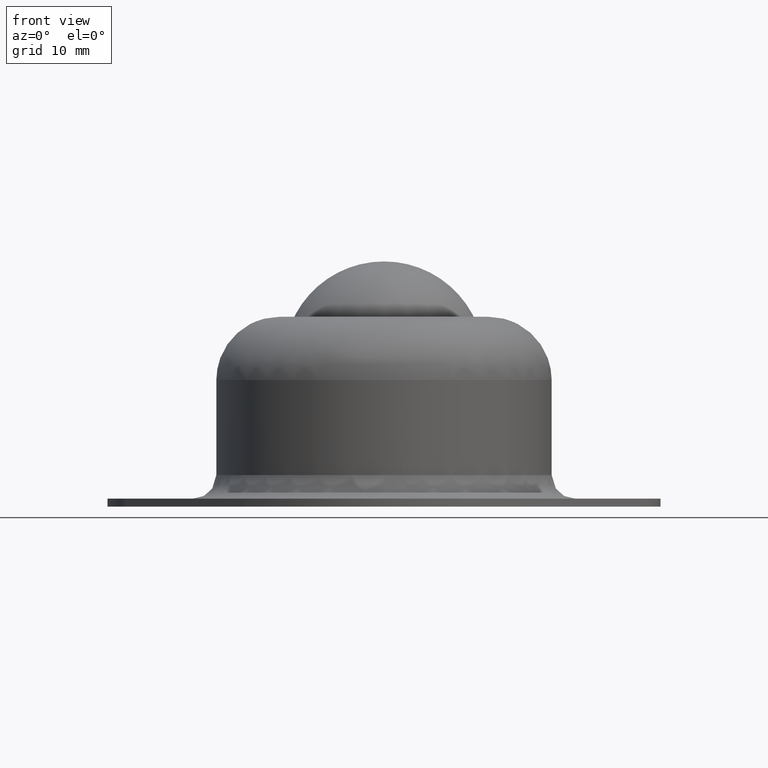
[diagram: clean part render]
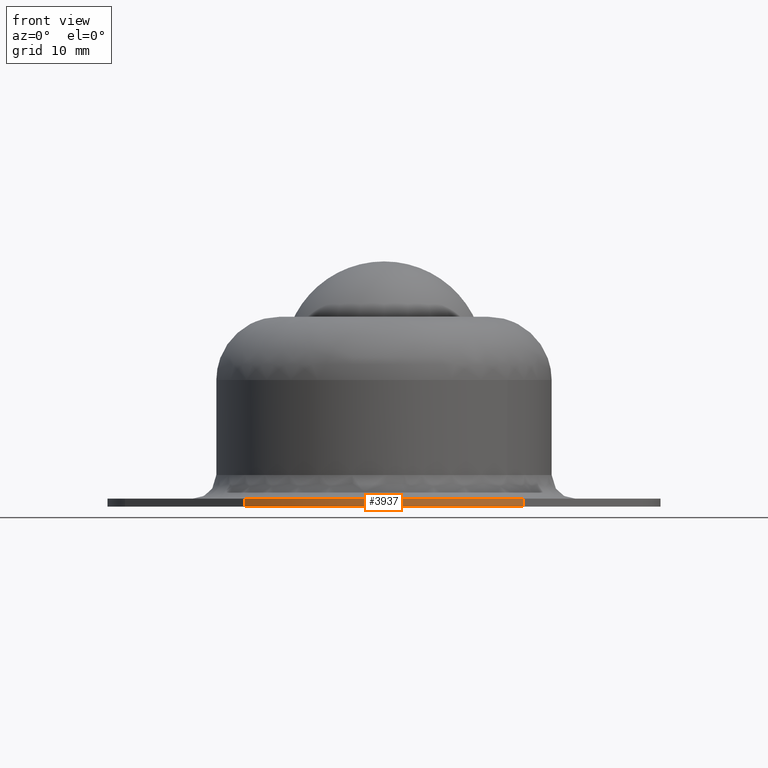
[diagram: same view with one face highlighted and labeled with its STEP entity id]
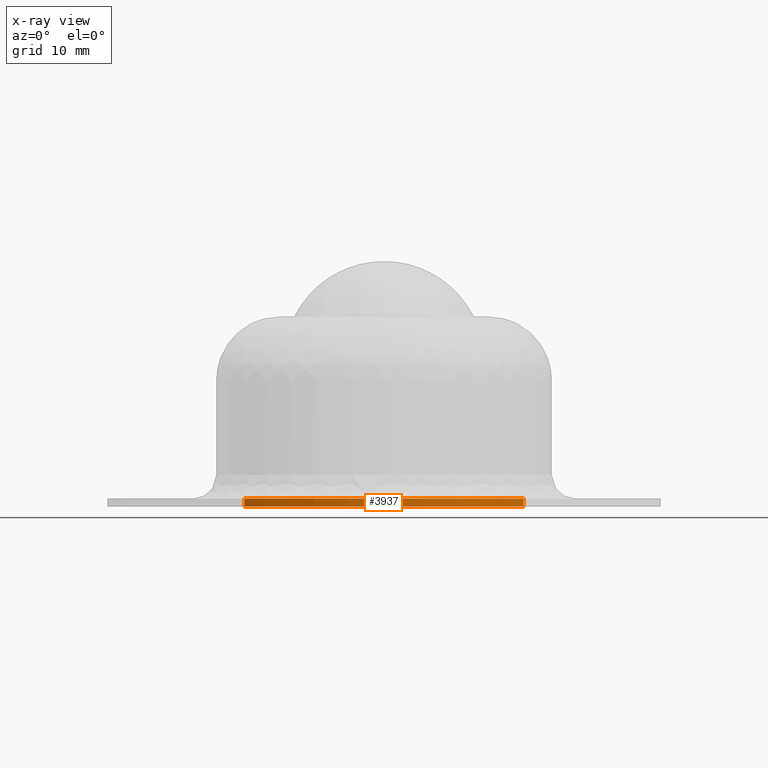
[diagram: x-ray of the same camera — body ghosted, the highlighted face saturated]
A machine part, front view. The second image highlights one B-rep face of the part: STEP entity #3937.
The next image is the same camera in x-ray: the body ghosted, the highlighted face saturated — about 0% of this face is hidden behind the body in this view.
In plain terms, the highlighted face is a freeform B-spline surface patch.
Its self-contained STEP definition (entity closure, byte-faithful):
#3680=CARTESIAN_POINT('',(-17.642857142857149,-19.097894958260049,0.0));
#3681=VERTEX_POINT('',#3680);
#3687=CARTESIAN_POINT('',(-17.642857142857149,-19.097894958260049,1.0));
#3688=VERTEX_POINT('',#3687);
#3689=CARTESIAN_POINT('',(-17.642857142857149,-19.097894958260049,1.0));
#3690=CARTESIAN_POINT('',(-17.642857142857149,-19.097894958260049,0.0));
#3691=QUASI_UNIFORM_CURVE('',1,(#3689,#3690),.UNSPECIFIED.,.F.,.U.);
#3692=EDGE_CURVE('',#3688,#3681,#3691,.T.);
#3775=CARTESIAN_POINT('',(17.642857142857149,-19.097894958260049,0.0));
#3776=VERTEX_POINT('',#3775);
#3783=CARTESIAN_POINT('',(17.642857142857149,-19.097894958260049,1.0));
#3784=VERTEX_POINT('',#3783);
#3790=CARTESIAN_POINT('',(17.642857142857149,-19.097894958260049,1.0));
#3791=CARTESIAN_POINT('',(17.642857142857149,-19.097894958260049,0.0));
#3792=QUASI_UNIFORM_CURVE('',1,(#3790,#3791),.UNSPECIFIED.,.F.,.U.);
#3793=EDGE_CURVE('',#3784,#3776,#3792,.T.);
#3852=CARTESIAN_POINT('',(17.642857142857149,-19.097894958260049,0.0));
#3853=CARTESIAN_POINT('',(16.530167340780071,-20.125995491369899,0.0));
#3854=CARTESIAN_POINT('',(14.605493848488150,-21.614573116952300,0.0));
#3855=CARTESIAN_POINT('',(11.618972091506430,-23.318867615629252,0.0));
#3856=CARTESIAN_POINT('',(9.111516260120551,-24.402329969568481,0.0));
#3857=CARTESIAN_POINT('',(6.457751308374121,-25.231927221234809,0.0));
#3858=CARTESIAN_POINT('',(3.781674110980034,-25.777245491448831,0.0));
#3859=CARTESIAN_POINT('',(0.507674245287412,-26.073781700560339,0.0));
#3860=CARTESIAN_POINT('',(-3.237166537105068,-25.910123304080940,0.0));
#3861=CARTESIAN_POINT('',(-7.057613482054480,-25.119951274956460,0.0));
#3862=CARTESIAN_POINT('',(-10.337913382424921,-23.923963069934619,0.0));
#3863=CARTESIAN_POINT('',(-12.819134403278809,-22.666531468737752,0.0));
#3864=CARTESIAN_POINT('',(-15.251917916835460,-21.123655810720582,0.0));
#3865=CARTESIAN_POINT('',(-16.752678037757679,-19.920331511510739,0.0));
#3866=CARTESIAN_POINT('',(-17.642857142857149,-19.097894958260049,0.0));
#3867=B_SPLINE_CURVE_WITH_KNOTS('',3,(#3852,#3853,#3854,#3855,#3856,#3857,#3858,#3859,#3860,#3861,#3862,#3863,#3864,#3865,#3866),.UNSPECIFIED.,.F.,.U.,(4,1,1,1,1,1,1,1,1,1,1,1,4),(0.000000025836506,4.544819322290685,7.271710778262722,10.301598979895140,12.725513055058499,15.603904560350140,18.482291031781941,22.572616281703109,26.814449646370161,30.147326835620031,33.025715378939921,35.146647907775922,38.782487722300623),.UNSPECIFIED.);
#3868=EDGE_CURVE('',#3776,#3681,#3867,.T.);
#3900=CARTESIAN_POINT('',(-18.310147374061259,-18.459103530241041,1.025000000000000));
#3901=CARTESIAN_POINT('',(-18.310147374061259,-18.459103530241041,-0.025625000000000));
#3902=CARTESIAN_POINT('',(0.594147335001452,-37.210849602771191,1.025000000000000));
#3903=CARTESIAN_POINT('',(0.594147335001452,-37.210849602771191,-0.025625000000000));
#3904=CARTESIAN_POINT('',(18.890137987909647,-17.865124874954901,1.025000000000000));
#3905=CARTESIAN_POINT('',(18.890137987909647,-17.865124874954901,-0.025625000000000));
#3913=(BOUNDED_SURFACE()B_SPLINE_SURFACE(1,2,((#3900,#3902,#3904),(#3901,#3903,#3905)),.UNSPECIFIED.,.F.,.F.,.U.)B_SPLINE_SURFACE_WITH_KNOTS((2,2),(3,3),(0.0,1.0),(0.0,43.805803519743350),.UNSPECIFIED.)GEOMETRIC_REPRESENTATION_ITEM()RATIONAL_B_SPLINE_SURFACE(((1.0,0.697003913575863,0.995344949288326),(1.0,0.697003913575863,0.995344949288326)))REPRESENTATION_ITEM('')SURFACE());
#3914=ORIENTED_EDGE('',*,*,#3692,.T.);
#3915=ORIENTED_EDGE('',*,*,#3868,.F.);
#3916=ORIENTED_EDGE('',*,*,#3793,.F.);
#3917=CARTESIAN_POINT('',(17.642857142857149,-19.097894958260049,1.0));
#3918=CARTESIAN_POINT('',(16.530167340780071,-20.125995491369899,1.000000000000003));
#3919=CARTESIAN_POINT('',(14.605493848488150,-21.614573116952300,1.000000000000000));
#3920=CARTESIAN_POINT('',(11.618972091506430,-23.318867615629252,1.000000000000003));
#3921=CARTESIAN_POINT('',(9.111516260120553,-24.402329969568481,0.999999999999992));
#3922=CARTESIAN_POINT('',(6.457751308374119,-25.231927221234809,1.000000000000009));
#3923=CARTESIAN_POINT('',(3.781674111024018,-25.777245491369619,0.999999999999996));
#3924=CARTESIAN_POINT('',(0.507674246605182,-26.073781698189229,1.000000000000004));
#3925=CARTESIAN_POINT('',(-3.237166547325696,-25.910123322473240,0.999999999999992));
#3926=CARTESIAN_POINT('',(-7.057613450165160,-25.119951217561070,1.000000000000004));
#3927=CARTESIAN_POINT('',(-10.337913442388720,-23.923963178052439,0.999999999999992));
#3928=CARTESIAN_POINT('',(-12.819134353317780,-22.666531372426810,1.000000000000008));
#3929=CARTESIAN_POINT('',(-15.251917834244839,-21.123655688040301,0.999999999999998));
#3930=CARTESIAN_POINT('',(-16.752678060349691,-19.920331494670410,0.999999999999992));
#3931=CARTESIAN_POINT('',(-17.642857142857149,-19.097894958260049,1.0));
#3932=B_SPLINE_CURVE_WITH_KNOTS('',3,(#3917,#3918,#3919,#3920,#3921,#3922,#3923,#3924,#3925,#3926,#3927,#3928,#3929,#3930,#3931),.UNSPECIFIED.,.F.,.U.,(4,1,1,1,1,1,1,1,1,1,1,1,4),(0.000000025836506,4.544819322290685,7.271710778262722,10.301598979895140,12.725513055058499,15.603904560350140,18.482291031781941,22.572616281703109,26.814449646370161,30.147326835620031,33.025715378939921,35.146647907775922,38.782487722300623),.UNSPECIFIED.);
#3933=EDGE_CURVE('',#3784,#3688,#3932,.T.);
#3934=ORIENTED_EDGE('',*,*,#3933,.T.);
#3935=EDGE_LOOP('',(#3914,#3915,#3916,#3934));
#3936=FACE_OUTER_BOUND('',#3935,.T.);
#3937=ADVANCED_FACE('',(#3936),#3913,.T.);